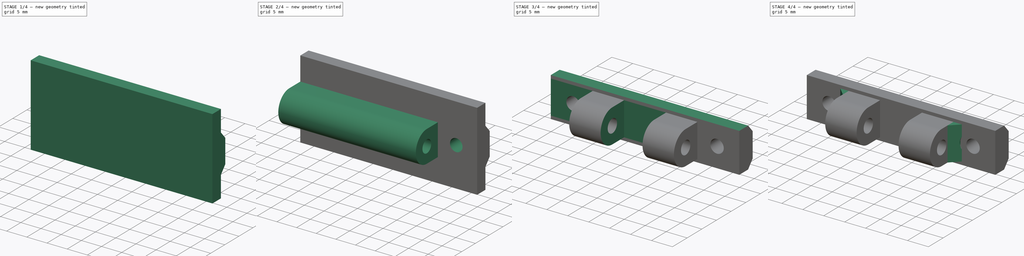
[diagram: build sequence overview — one tinted view per stage of 4, left to right]
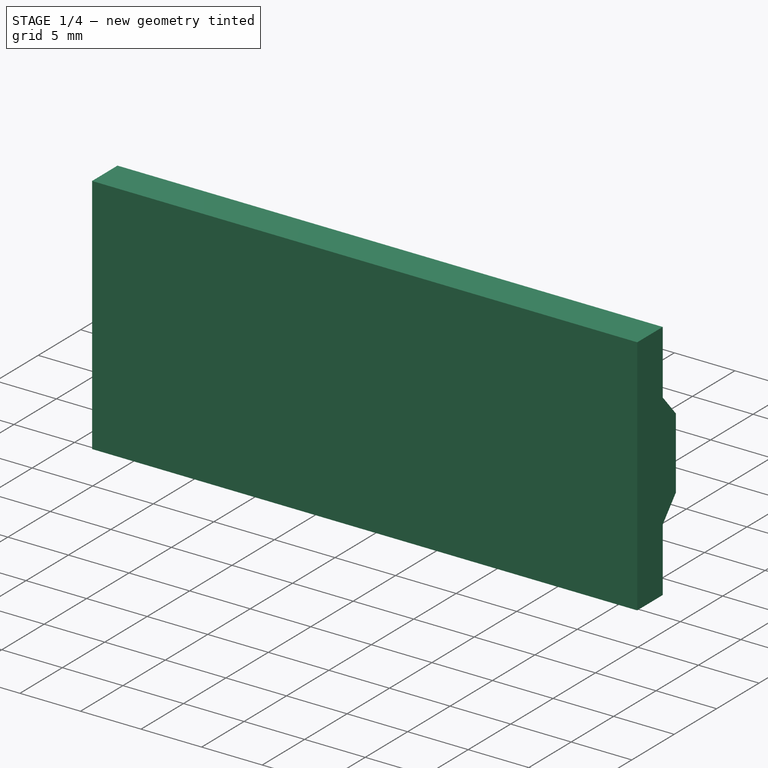
[diagram: stage 1 of 4 — iso view after this stage's code; geometry added in this stage tinted green]
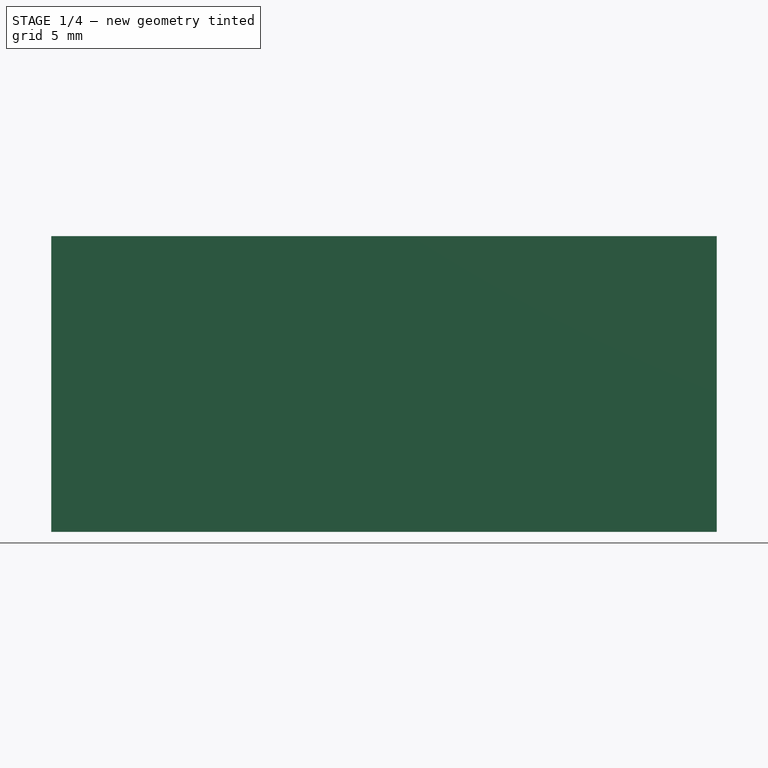
[diagram: stage 1 of 4 — front view after this stage's code; geometry added in this stage tinted green]
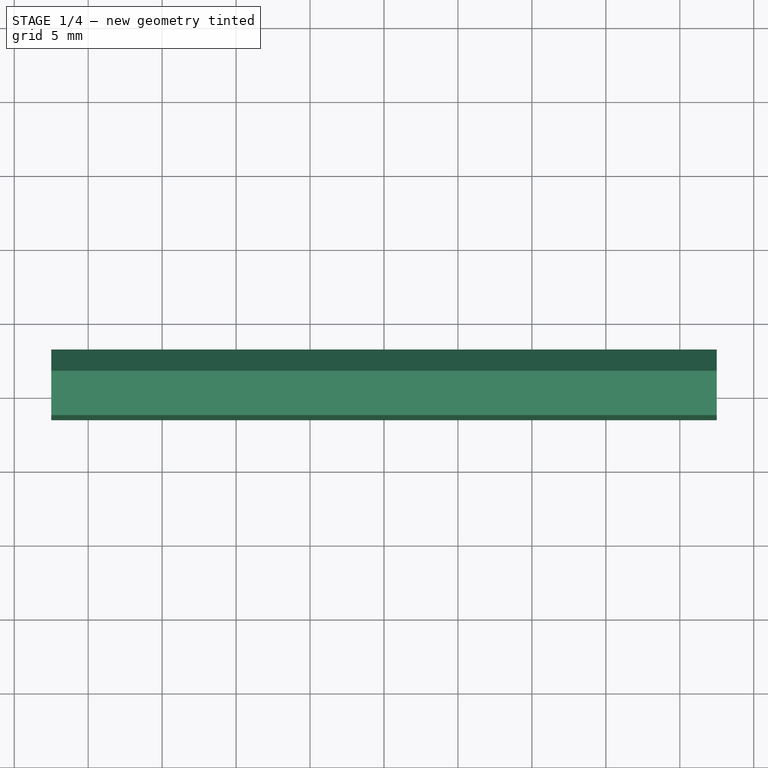
[diagram: stage 1 of 4 — top view after this stage's code; geometry added in this stage tinted green]
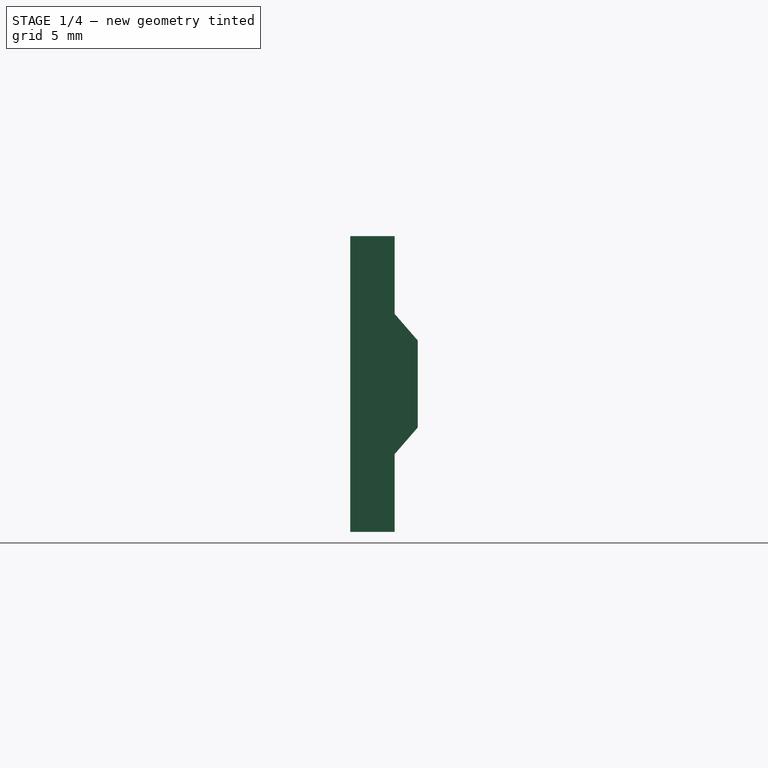
[diagram: stage 1 of 4 — right view after this stage's code; geometry added in this stage tinted green]
FCSTD DOCUMENT  (FreeCAD 0.20R29603 (Git))
Label: suporte-articulado-45-2P
License: All rights reserved
LicenseURL: http://en.wikipedia.org/wiki/All_rights_reserved
objects: Sketcher::SketchObject×9, PartDesign::Pocket×6, PartDesign::Pad×3, PartDesign::Chamfer×1, PartDesign::Body×1
note: 30 computed .brp shape members not serialized (recipe doc carries the construction recipe); baked Part::Feature solids carry a one-line shape summary decoded from their .brp

FEATURE [Sketcher::SketchObject] Sketch
  FullyConstrained = true
  MapMode = 5
  Support = -> [XY_Plane]
  sketch-geometry (6):
    g0: LineSegment StartX=-22.5 StartY=1.5 StartZ=0 EndX=22.5 EndY=1.5 EndZ=0
    g1: LineSegment StartX=22.5 StartY=1.5 StartZ=0 EndX=22.5 EndY=-1.5 EndZ=0
    g2: LineSegment StartX=22.5 StartY=-1.5 StartZ=0 EndX=-22.5 EndY=-1.5 EndZ=0
    g3: LineSegment StartX=-22.5 StartY=-1.5 StartZ=0 EndX=-22.5 EndY=1.5 EndZ=0
    g4: LineSegment StartX=22.5 StartY=1.5 StartZ=0 EndX=-22.5 EndY=-1.5 EndZ=0
    g5: LineSegment StartX=-22.5 StartY=1.5 StartZ=0 EndX=22.5 EndY=-1.5 EndZ=0
  constraints (16):
    c: Coincident(g0,g1)
    c: Coincident(g1,g2)
    c: Coincident(g2,g3)
    c: Coincident(g3,g0)
    c: Horizontal(g0)
    c: Horizontal(g2)
    c: Vertical(g1)
    c: Vertical(g3)
    c: Coincident(g4,g0)
    c: Coincident(g4,g2)
    c: Coincident(g5,g0)
    c: Coincident(g5,g1)
    c: PointOnObject(g-1,g5)
    c: PointOnObject(g-1,g4)
    c: DistanceX(g2,g2) = 45
    c: DistanceY(g3,g3) = 3
FEATURE [PartDesign::Pad] Pad
  Direction = (0,0,1)
  Length = 20
  Length2 = 10
  Profile = -> Sketch
  ReferenceAxis = -> Sketch [N_Axis]
  Type = 0
FEATURE [Sketcher::SketchObject] Sketch001
  ExternalGeometry = -> [Pad]
  FullyConstrained = true
  MapMode = 5
  Placement = pos=(22.5,0,0) rot=(0.57735,0.57735,0.57735;2.0944rad)
  Support = -> [Pad]
  sketch-geometry (7):
    g0: LineSegment StartX=0 StartY=20 StartZ=0 EndX=0 EndY=10 EndZ=0
    g1: LineSegment StartX=0 StartY=10 StartZ=0 EndX=0 EndY=0 EndZ=0
    g2: LineSegment StartX=1.5 StartY=10 StartZ=0 EndX=1.5 EndY=14.74 EndZ=0
    g3: LineSegment StartX=3.06 StartY=12.94 StartZ=0 EndX=3.06 EndY=7.06 EndZ=0
    g4: LineSegment StartX=1.5 StartY=5.26 StartZ=0 EndX=1.5 EndY=10 EndZ=0
    g5: LineSegment StartX=1.5 StartY=14.74 StartZ=0 EndX=3.06 EndY=12.94 EndZ=0
    g6: LineSegment StartX=3.06 StartY=7.06 StartZ=0 EndX=1.5 EndY=5.26 EndZ=0
  constraints (21):
    c: Coincident(g1,g0)
    c: Coincident(g1,g-1)
    c: Vertical(g1)
    c: Vertical(g0)
    c: PointOnObject(g0,g-3)
    c: Vertical(g2)
    c: Vertical(g3)
    c: Vertical(g4)
    c: Coincident(g4,g2)
    c: Horizontal(g2,g0)
    c: Vertical(g2,g-3)
    c: Equal(g4,g2)
    c: Equal(g0,g1)
    c: DistanceY(g4,g2) = 9.48
    c: DistanceY(g3,g3) = 5.88
    c: DistanceX(g4,g3) = 1.56
    c: Coincident(g5,g2)
    c: Coincident(g5,g3)
    c: Coincident(g6,g3)
    c: Coincident(g6,g4)
    c: Equal(g6,g5)
FEATURE [PartDesign::Pad] Pad001
  BaseFeature = -> Pad
  Direction = (1,0,0)
  Length = 10
  Length2 = 10
  Profile = -> Sketch001
  ReferenceAxis = -> Sketch001 [N_Axis]
  Type = 3
  UpToFace = -> Pad [Face4]
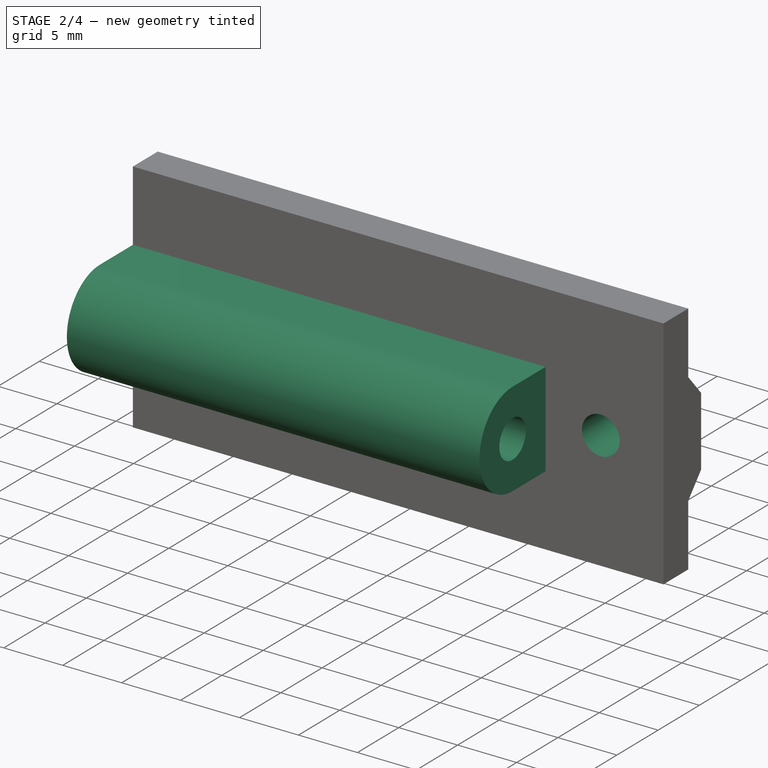
[diagram: stage 2 of 4 — iso view after this stage's code; geometry added in this stage tinted green]
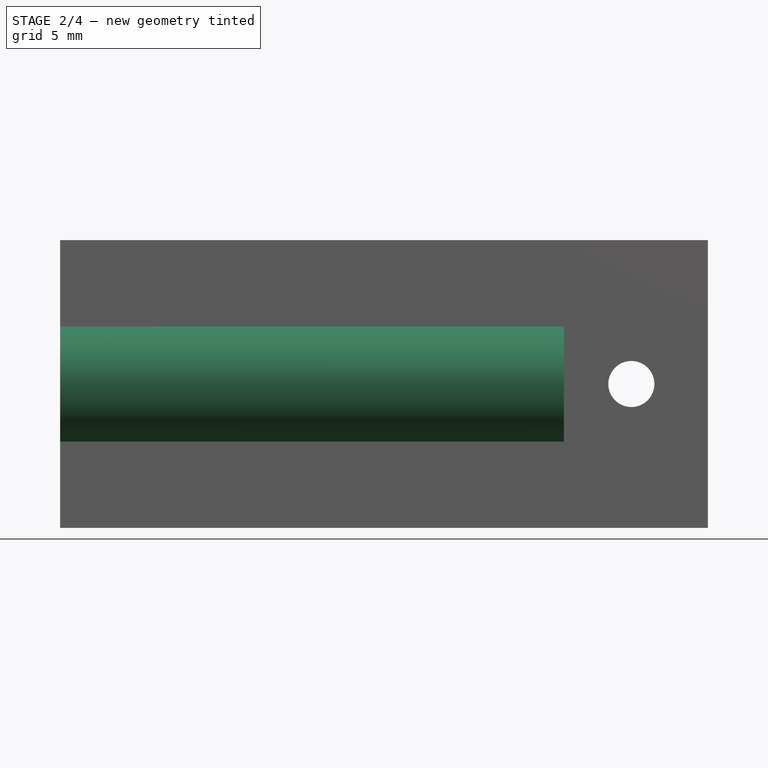
[diagram: stage 2 of 4 — front view after this stage's code; geometry added in this stage tinted green]
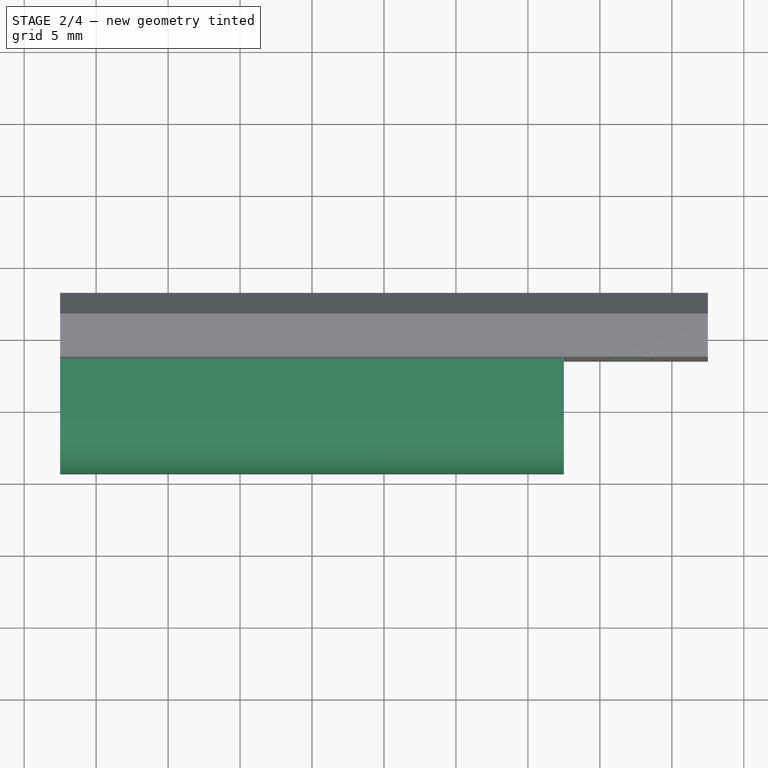
[diagram: stage 2 of 4 — top view after this stage's code; geometry added in this stage tinted green]
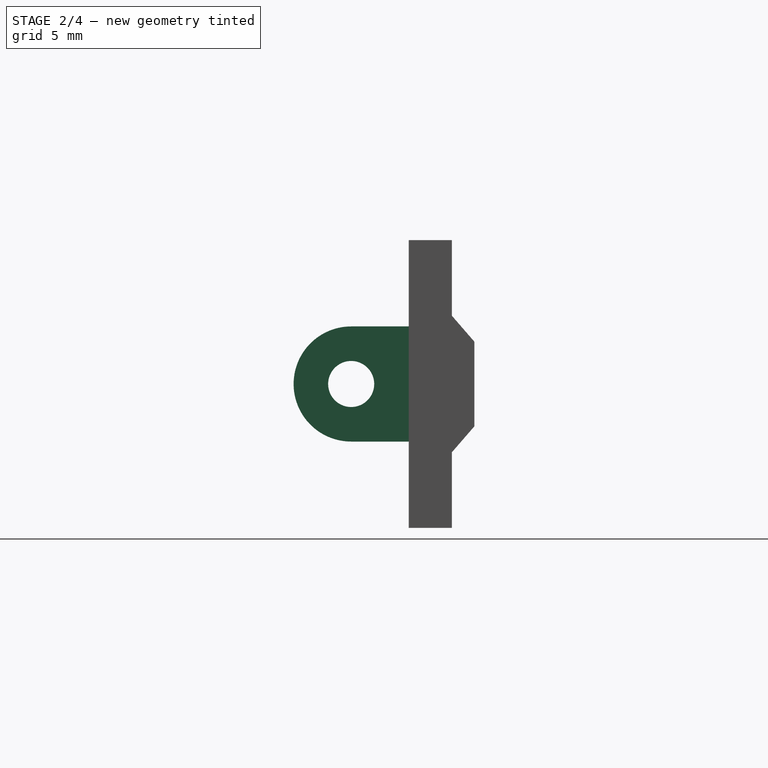
[diagram: stage 2 of 4 — right view after this stage's code; geometry added in this stage tinted green]
FEATURE [Sketcher::SketchObject] Sketch002
  ExternalGeometry = -> [Pad001]
  FullyConstrained = true
  MapMode = 5
  Placement = pos=(0,-1.5,0) rot=(1,0,0;1.5708rad)
  Support = -> [Pad001]
  sketch-geometry (7):
    g0: LineSegment StartX=-22.5 StartY=20 StartZ=0 EndX=22.5 EndY=0 EndZ=0
    g1: LineSegment StartX=22.5 StartY=20 StartZ=0 EndX=-22.5 EndY=0 EndZ=0
    g2: GeomPoint X=5e-16 Y=10 Z=0
    g3: LineSegment StartX=5e-16 StartY=10 StartZ=0 EndX=-17.186 EndY=10 EndZ=0
    g4: LineSegment StartX=5e-16 StartY=10 StartZ=0 EndX=17.186 EndY=10 EndZ=0
    g5: Circle CenterX=-17.186 CenterY=10 CenterZ=0 NormalX=0 NormalY=0 NormalZ=1 AngleXU=0 Radius=1.6
    g6: Circle CenterX=17.186 CenterY=10 CenterZ=0 NormalX=0 NormalY=0 NormalZ=1 AngleXU=0 Radius=1.6
  constraints (16):
    c: Coincident(g0,g-4)
    c: Coincident(g0,g-3)
    c: Coincident(g1,g-3)
    c: Coincident(g1,g-4)
    c: PointOnObject(g2,g1)
    c: PointOnObject(g2,g0)
    c: Coincident(g3,g2)
    c: Horizontal(g3)
    c: Coincident(g4,g2)
    c: Horizontal(g4)
    c: Equal(g4,g3)
    c: Coincident(g5,g3)
    c: Coincident(g6,g4)
    c: Equal(g6,g5)
    c: Diameter(g5) = 3.2
    c: DistanceX(g5,g6) = 34.372
FEATURE [PartDesign::Pocket] Pocket
  BaseFeature = -> Pad001
  Direction = (0,1,-2e-16)
  Length = 5
  Length2 = 5
  Profile = -> Sketch002
  ReferenceAxis = -> Sketch002 [N_Axis]
  Type = 1
FEATURE [Sketcher::SketchObject] Sketch004
  ExternalGeometry = -> [Pocket]
  FullyConstrained = true
  MapMode = 5
  Placement = pos=(22.5,0,0) rot=(0.57735,0.57735,0.57735;2.0944rad)
  Support = -> [Pocket]
  sketch-geometry (8):
    g0: ArcOfCircle CenterX=-5.5 CenterY=10 CenterZ=0 NormalX=0 NormalY=0 NormalZ=1 AngleXU=0 Radius=4 StartAngle=1.5708 EndAngle=4.71239
    g1: LineSegment StartX=-5.5 StartY=6 StartZ=0 EndX=-1.5 EndY=6 EndZ=0
    g2: LineSegment StartX=-1.5 StartY=14 StartZ=0 EndX=-5.5 EndY=14 EndZ=0
    g3: LineSegment StartX=-1.5 StartY=20 StartZ=0 EndX=-1.5 EndY=10 EndZ=0
    g4: LineSegment StartX=-1.5 StartY=0 StartZ=0 EndX=-1.5 EndY=10 EndZ=0
    g5: Circle CenterX=-5.5 CenterY=10 CenterZ=0 NormalX=0 NormalY=0 NormalZ=1 AngleXU=0 Radius=4
    g6: Circle CenterX=-5.5 CenterY=10 CenterZ=0 NormalX=0 NormalY=0 NormalZ=1 AngleXU=0 Radius=1.6
    g7: LineSegment StartX=-1.5 StartY=14 StartZ=0 EndX=-1.5 EndY=6 EndZ=0
  constraints (20):
    c: Tangent(g0,g1) = -1.5708
    c: Tangent(g2,g0) = -1.5708
    c: Horizontal(g1)
    c: Horizontal(g2)
    c: Coincident(g3,g-3)
    c: Coincident(g4,g-3)
    c: Coincident(g4,g3)
    c: Equal(g4,g3)
    c: PointOnObject(g3,g-3)
    c: PointOnObject(g1,g4)
    c: PointOnObject(g2,g3)
    c: Coincident(g5,g0)
    c: Equal(g5,g0)
    c: Tangent(g5,g4)
    c: Coincident(g6,g0)
    c: Diameter(g6) = 3.2
    c: Horizontal(g0,g3)
    c: Diameter(g5) = 8
    c: Coincident(g7,g2)
    c: Coincident(g7,g1)
FEATURE [PartDesign::Pad] Pad002
  BaseFeature = -> Pocket
  Direction = (1,0,0)
  Length = 10
  Length2 = 10
  Profile = -> Sketch004
  ReferenceAxis = -> Sketch004 [N_Axis]
  Type = 3
  UpToFace = -> Pocket [Face5]
FEATURE [PartDesign::Pocket] Pocket001
  BaseFeature = -> Pad002
  Direction = (-1,0,0)
  Length = 10
  Length2 = 5
  Profile = -> Pad002 [Face9]
  Type = 0
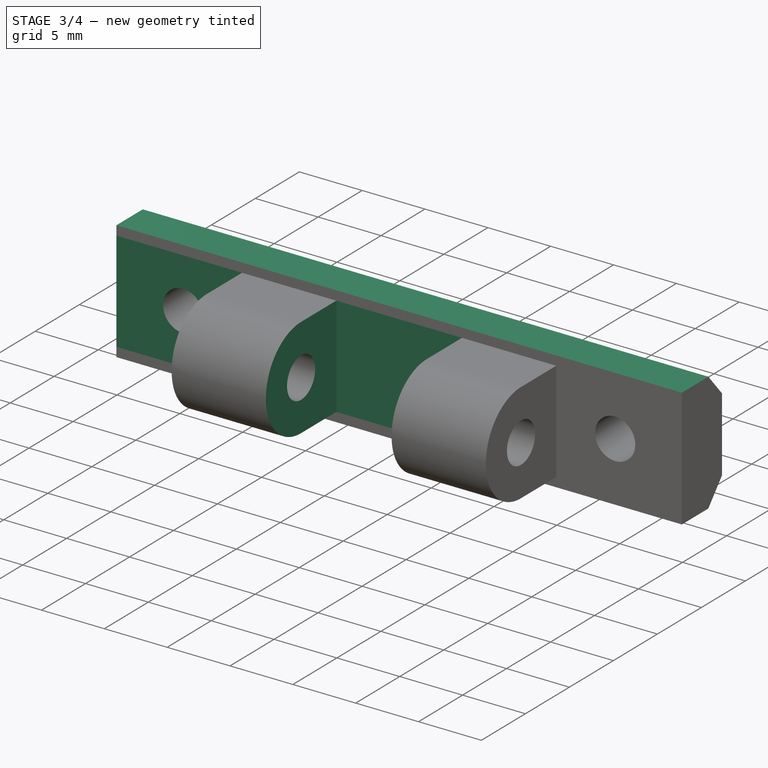
[diagram: stage 3 of 4 — iso view after this stage's code; geometry added in this stage tinted green]
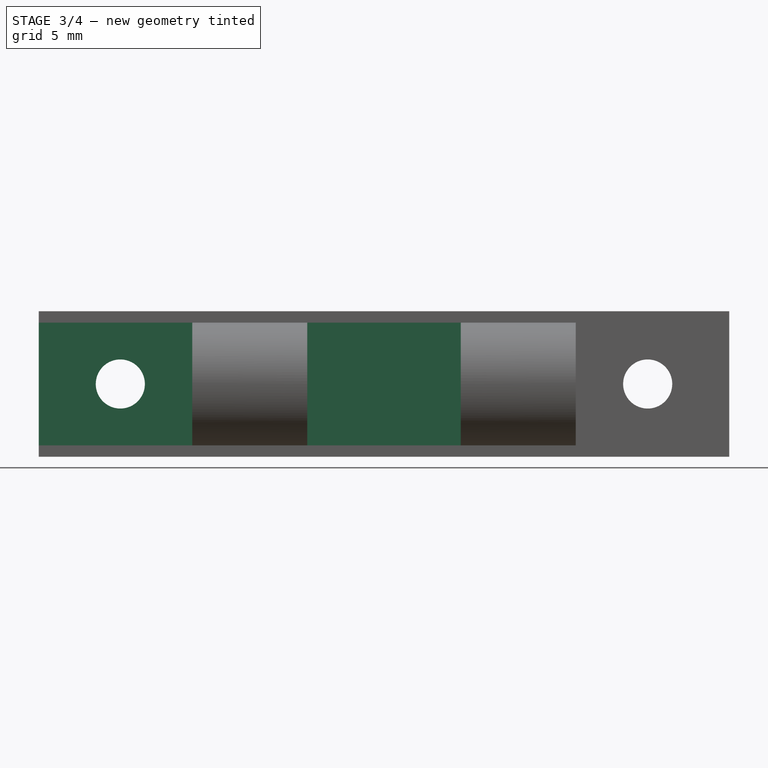
[diagram: stage 3 of 4 — front view after this stage's code; geometry added in this stage tinted green]
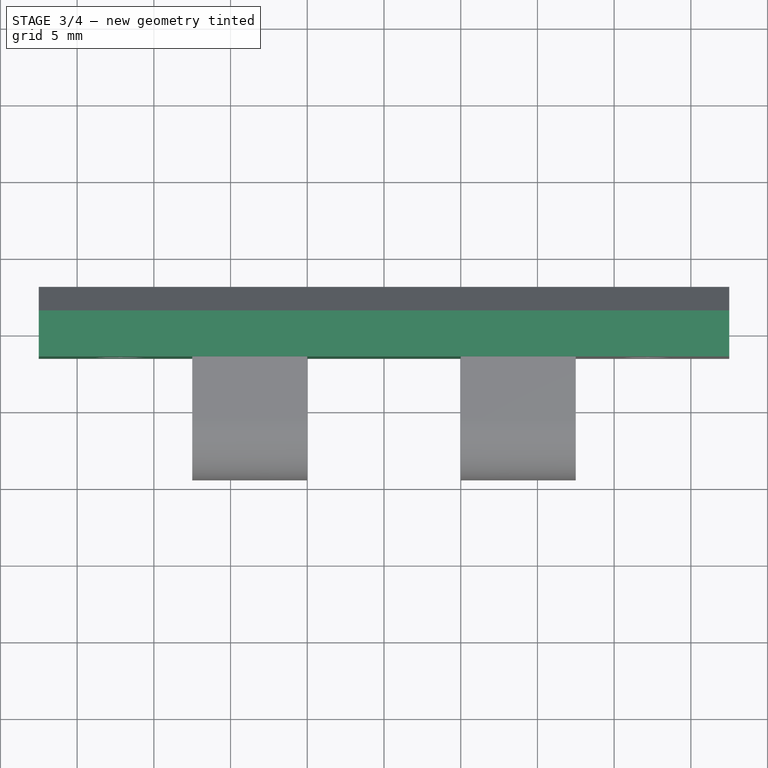
[diagram: stage 3 of 4 — top view after this stage's code; geometry added in this stage tinted green]
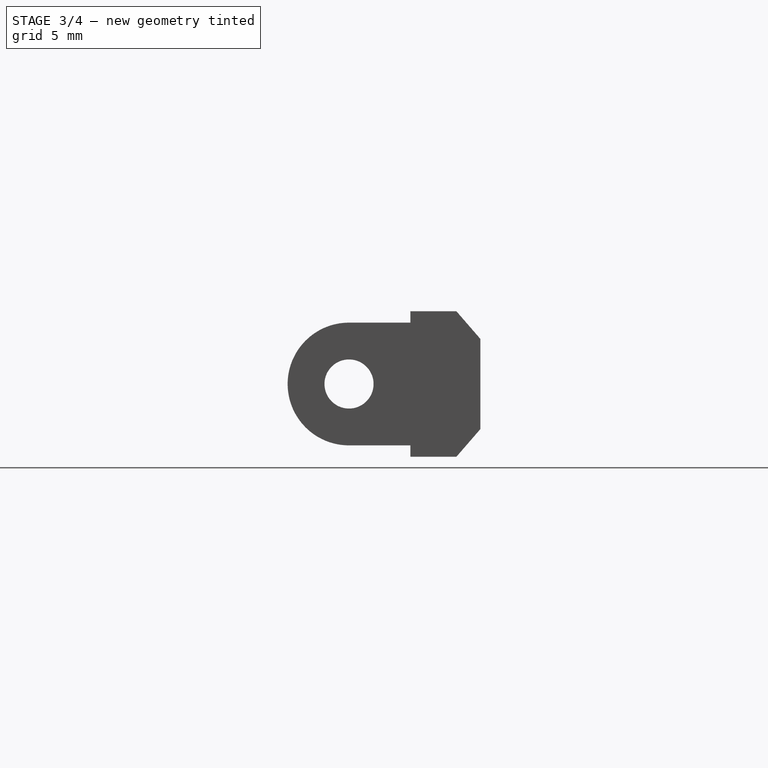
[diagram: stage 3 of 4 — right view after this stage's code; geometry added in this stage tinted green]
FEATURE [PartDesign::Pocket] Pocket002
  BaseFeature = -> Pocket001
  Direction = (1,0,0)
  Length = 10
  Length2 = 5
  Profile = -> Pocket001 [Face14]
  Type = 0
FEATURE [Sketcher::SketchObject] Sketch005
  ExternalGeometry = -> [Pocket002]
  FullyConstrained = true
  MapMode = 5
  Placement = pos=(0,0,0) rot=(1,0,0;3.14159rad)
  Support = -> [Pocket002]
  sketch-geometry (7):
    g0: LineSegment StartX=-5 StartY=9.5 StartZ=0 EndX=5 EndY=9.5 EndZ=0
    g1: LineSegment StartX=5 StartY=9.5 StartZ=0 EndX=5 EndY=1.5 EndZ=0
    g2: LineSegment StartX=5 StartY=1.5 StartZ=0 EndX=-5 EndY=1.5 EndZ=0
    g3: LineSegment StartX=-5 StartY=1.5 StartZ=0 EndX=-5 EndY=9.5 EndZ=0
    g4: LineSegment StartX=5 StartY=9.5 StartZ=0 EndX=-5 EndY=1.5 EndZ=0
    g5: LineSegment StartX=-5 StartY=9.5 StartZ=0 EndX=5 EndY=1.5 EndZ=0
    g6: GeomPoint X=0 Y=5.5 Z=0
  constraints (19):
    c: DistanceX(g-3,g-3) = 25
    c: Coincident(g0,g1)
    c: Coincident(g1,g2)
    c: Coincident(g2,g3)
    c: Coincident(g3,g0)
    c: Horizontal(g0)
    c: Horizontal(g2)
    c: Vertical(g1)
    c: Vertical(g3)
    c: Horizontal(g0,g-4)
    c: PointOnObject(g1,g-3)
    c: DistanceX(g0,g0) = 10
    c: Coincident(g4,g0)
    c: Coincident(g4,g2)
    c: Coincident(g5,g0)
    c: Coincident(g5,g1)
    c: PointOnObject(g6,g4)
    c: PointOnObject(g6,g5)
    c: PointOnObject(g6,g-2)
FEATURE [PartDesign::Pocket] Pocket003
  BaseFeature = -> Pocket002
  Direction = (0,0,1)
  Length = 5
  Length2 = 5
  Profile = -> Sketch005
  ReferenceAxis = -> Sketch005 [N_Axis]
  Type = 1
FEATURE [Sketcher::SketchObject] Sketch006
  ExternalGeometry = -> [Pocket003]
  FullyConstrained = true
  MapMode = 5
  Placement = pos=(-22.5,0,0) rot=(0.57735,-0.57735,-0.57735;2.0944rad)
  Support = -> [Pocket003]
  sketch-geometry (8):
    g0: LineSegment StartX=1.5 StartY=20 StartZ=0 EndX=-1.5 EndY=20 EndZ=0
    g1: LineSegment StartX=-1.5 StartY=20 StartZ=0 EndX=-1.5 EndY=14.74 EndZ=0
    g2: LineSegment StartX=-1.5 StartY=14.74 StartZ=0 EndX=1.5 EndY=14.74 EndZ=0
    g3: LineSegment StartX=1.5 StartY=14.74 StartZ=0 EndX=1.5 EndY=20 EndZ=0
    g4: LineSegment StartX=-1.5 StartY=5.26 StartZ=0 EndX=1.5 EndY=5.26 EndZ=0
    g5: LineSegment StartX=1.5 StartY=5.26 StartZ=0 EndX=1.5 EndY=0 EndZ=0
    g6: LineSegment StartX=1.5 StartY=0 StartZ=0 EndX=-1.5 EndY=0 EndZ=0
    g7: LineSegment StartX=-1.5 StartY=0 StartZ=0 EndX=-1.5 EndY=5.26 EndZ=0
  constraints (20):
    c: Coincident(g0,g1)
    c: Coincident(g1,g2)
    c: Coincident(g2,g3)
    c: Coincident(g3,g0)
    c: Horizontal(g0)
    c: Horizontal(g2)
    c: Vertical(g1)
    c: Vertical(g3)
    c: Coincident(g0,g-3)
    c: Coincident(g1,g-6)
    c: Coincident(g4,g5)
    c: Coincident(g5,g6)
    c: Coincident(g6,g7)
    c: Coincident(g7,g4)
    c: Horizontal(g4)
    c: Horizontal(g6)
    c: Vertical(g5)
    c: Vertical(g7)
    c: Coincident(g4,g-5)
    c: Coincident(g5,g-4)
FEATURE [PartDesign::Pocket] Pocket004
  BaseFeature = -> Pocket003
  Direction = (1,0,0)
  Length = 5
  Length2 = 5
  Profile = -> Sketch006
  ReferenceAxis = -> Sketch006 [N_Axis]
  Type = 1
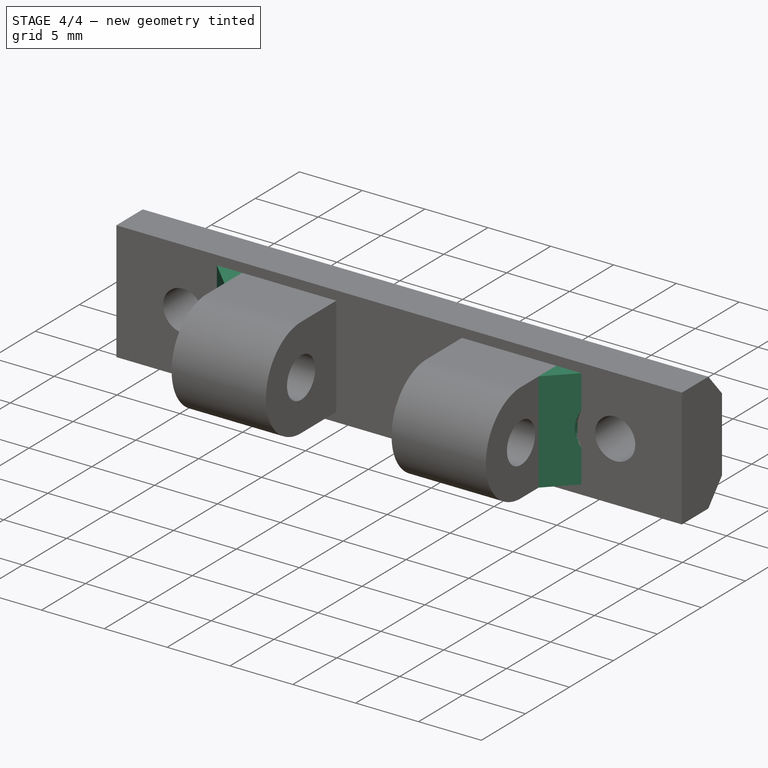
[diagram: stage 4 of 4 — iso view after this stage's code; geometry added in this stage tinted green]
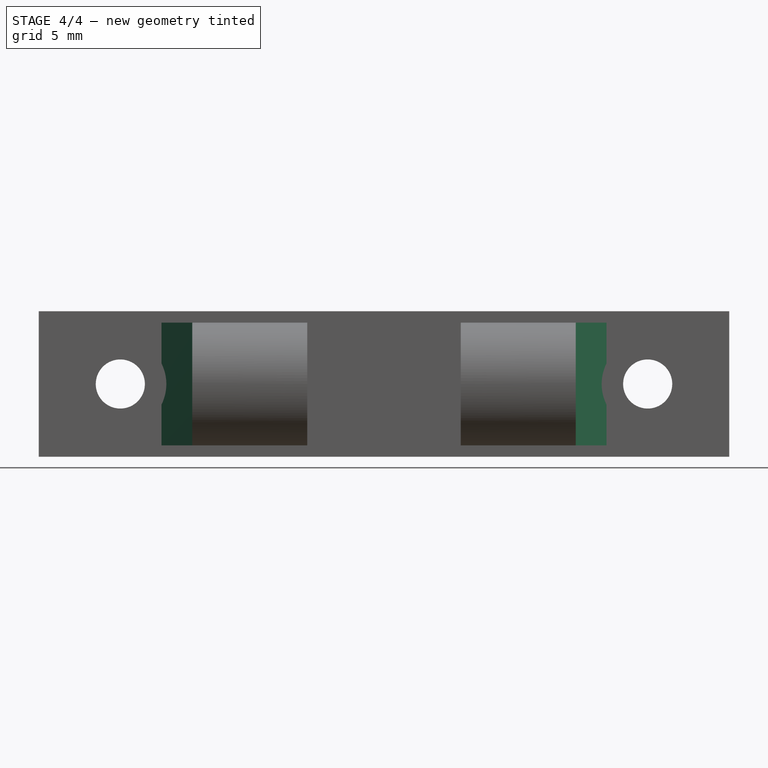
[diagram: stage 4 of 4 — front view after this stage's code; geometry added in this stage tinted green]
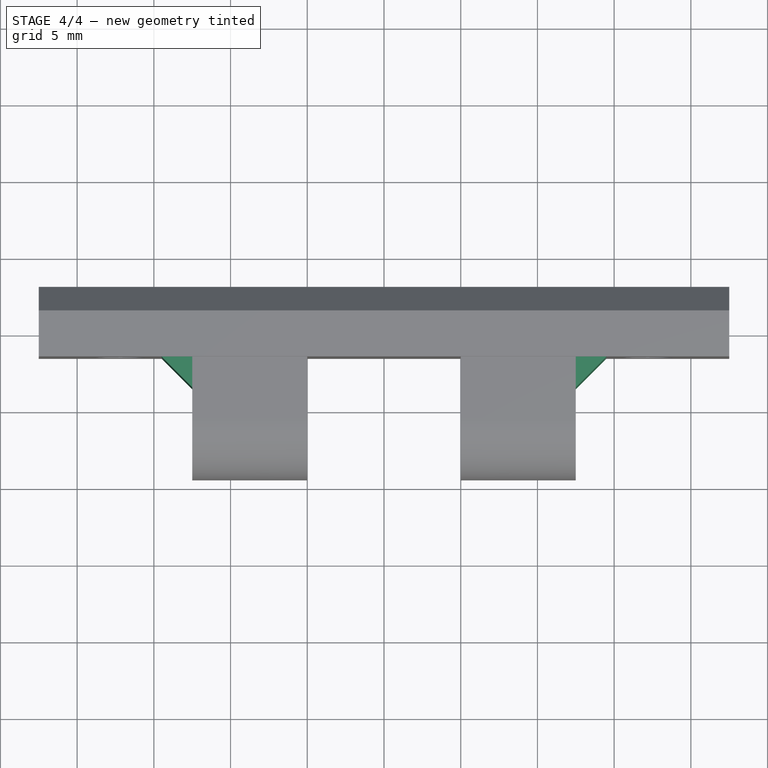
[diagram: stage 4 of 4 — top view after this stage's code; geometry added in this stage tinted green]
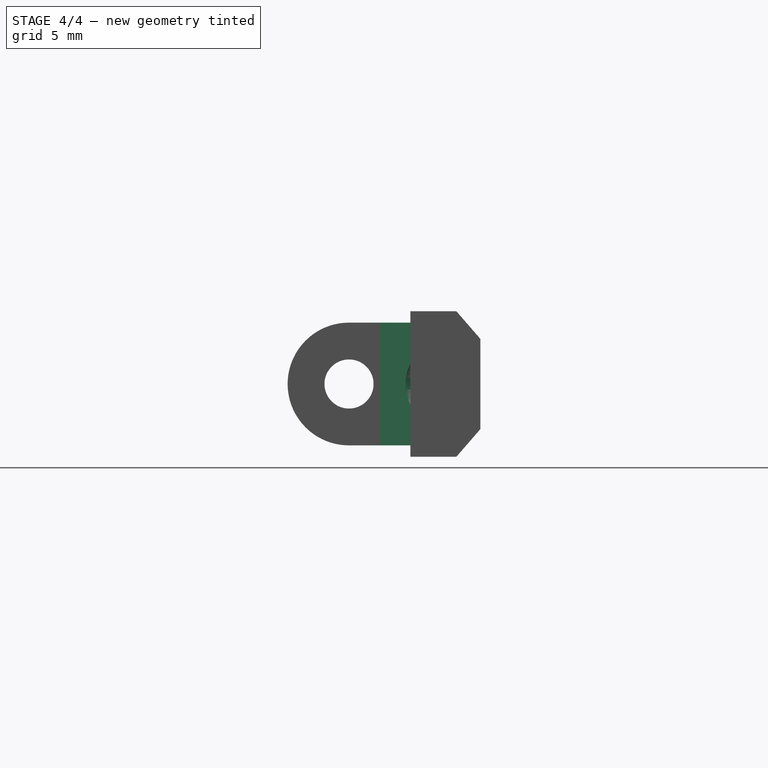
[diagram: stage 4 of 4 — right view after this stage's code; geometry added in this stage tinted green]
FEATURE [PartDesign::Chamfer] Chamfer
  Angle = 45
  Base = -> Pocket004 [Edge51,Edge42]
  BaseFeature = -> Pocket004
  ChamferType = 0
  FlipDirection = false
  Size = 2
  Size2 = 1
  SupportTransform = false
  UseAllEdges = false
FEATURE [Sketcher::SketchObject] Sketch007
  ExternalGeometry = -> [Chamfer]
  FullyConstrained = true
  MapMode = 5
  Placement = pos=(0,-1.5,0) rot=(1,0,0;1.5708rad)
  Support = -> [Chamfer]
  sketch-geometry (2):
    g0: Circle CenterX=-17.186 CenterY=10 CenterZ=0 NormalX=0 NormalY=0 NormalZ=1 AngleXU=0 Radius=3
    g1: Circle CenterX=17.186 CenterY=10 CenterZ=0 NormalX=0 NormalY=0 NormalZ=1 AngleXU=0 Radius=3
  constraints (4):
    c: Coincident(g0,g-4)
    c: Coincident(g1,g-3)
    c: Equal(g1,g0)
    c: Diameter(g0) = 6
FEATURE [PartDesign::Pocket] Pocket005
  BaseFeature = -> Chamfer
  Direction = (0,1,-2e-16)
  Length = 5
  Length2 = 5
  Profile = -> Sketch007
  ReferenceAxis = -> Sketch007 [N_Axis]
  Reversed = true
  Type = 1
FEATURE [Sketcher::SketchObject] Sketch008
  ExternalGeometry = -> [Pocket005]
  FullyConstrained = true
  MapMode = 5
  Placement = pos=(5,0,0) rot=(0.57735,-0.57735,-0.57735;2.0944rad)
  Support = -> [Pocket005]
  sketch-geometry (1):
    g0: Circle CenterX=5.5 CenterY=10 CenterZ=0 NormalX=0 NormalY=0 NormalZ=1 AngleXU=0 Radius=4
  constraints (3):
    c: Coincident(g0,g-3)
    c: Equal(g0,g-3)
    c: Diameter(g-3) = 8
FEATURE [Sketcher::SketchObject] Sketch009
  ExternalGeometry = -> [Pocket005]
  FullyConstrained = true
  MapMode = 5
  Placement = pos=(0,-1.5,0) rot=(1,0,0;1.5708rad)
  Support = -> [Pocket005]
  constraints (1):
    c: DistanceX(g-3,g-4) = 10
FEATURE [PartDesign::Body] Body
  Group = -> [Sketch,Pad,Sketch001,Pad001,Sketch002,Pocket,Sketch004,Pad002,Pocket001,Pocket002,Sketch005,Pocket003,Sketch006,Pocket004,Chamfer,Sketch007,Pocket005,Sketch008,Sketch009]
  Origin = -> Origin
  Tip = -> Pocket005
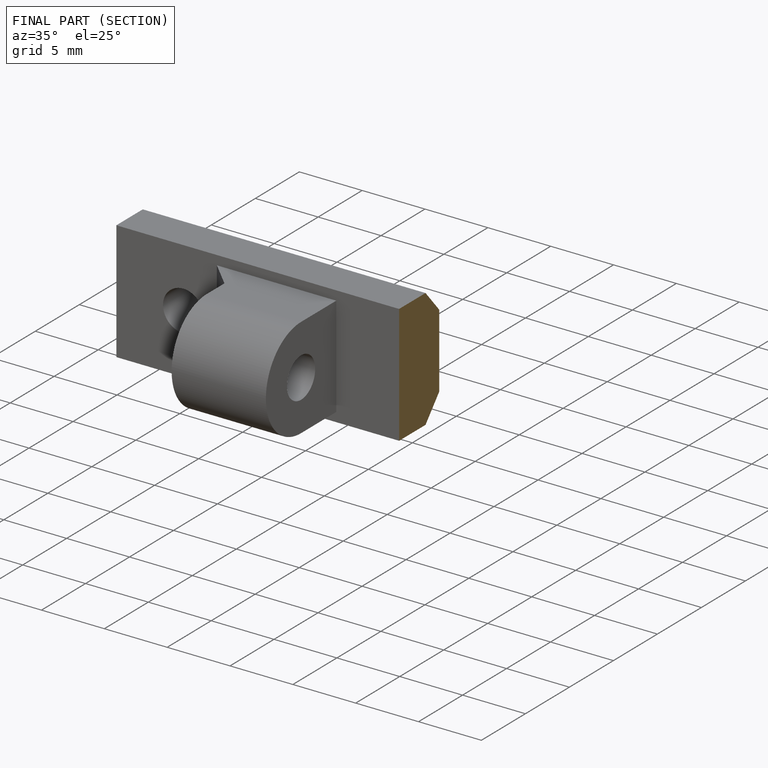
[diagram: finished part — half-section view (interior)]
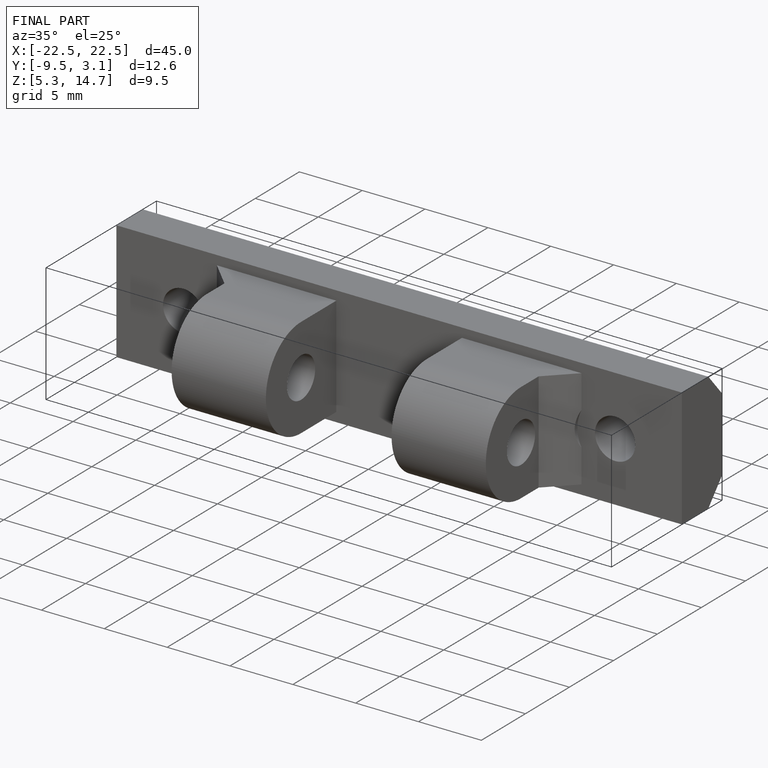
[diagram: finished part — iso view with bounding-box wireframe]
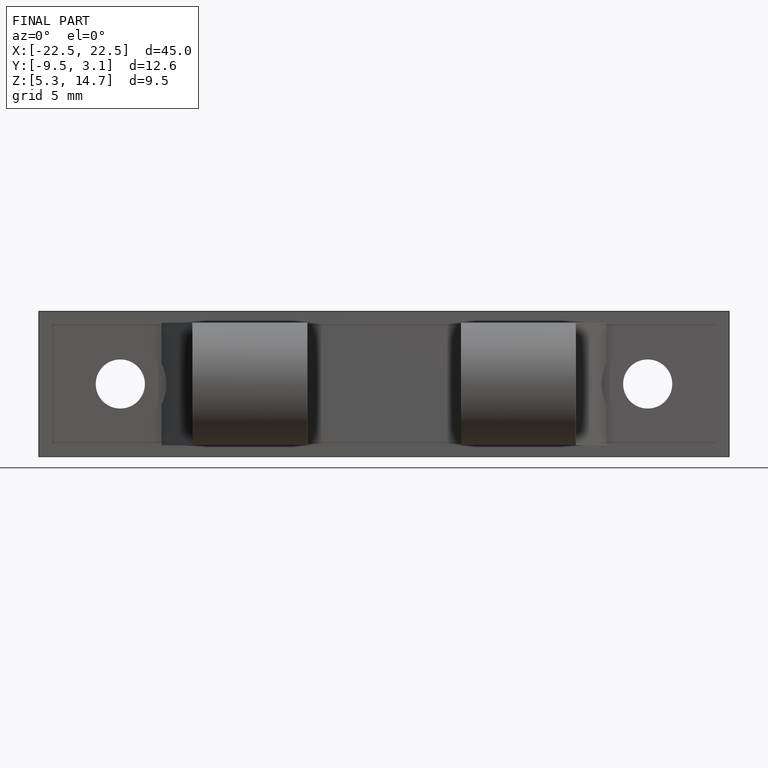
[diagram: finished part — front view with bounding-box wireframe]
